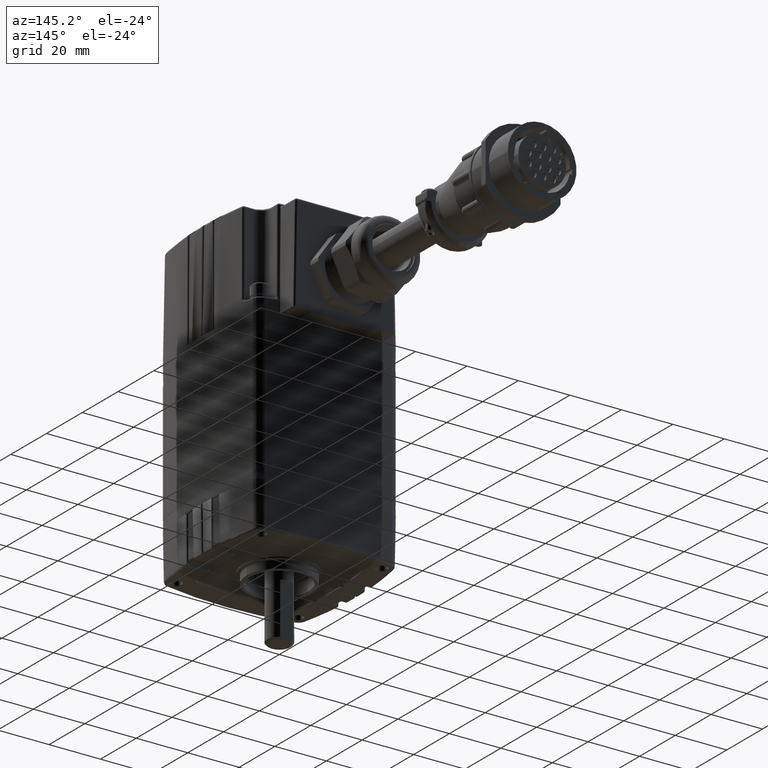
[diagram: clean part render]
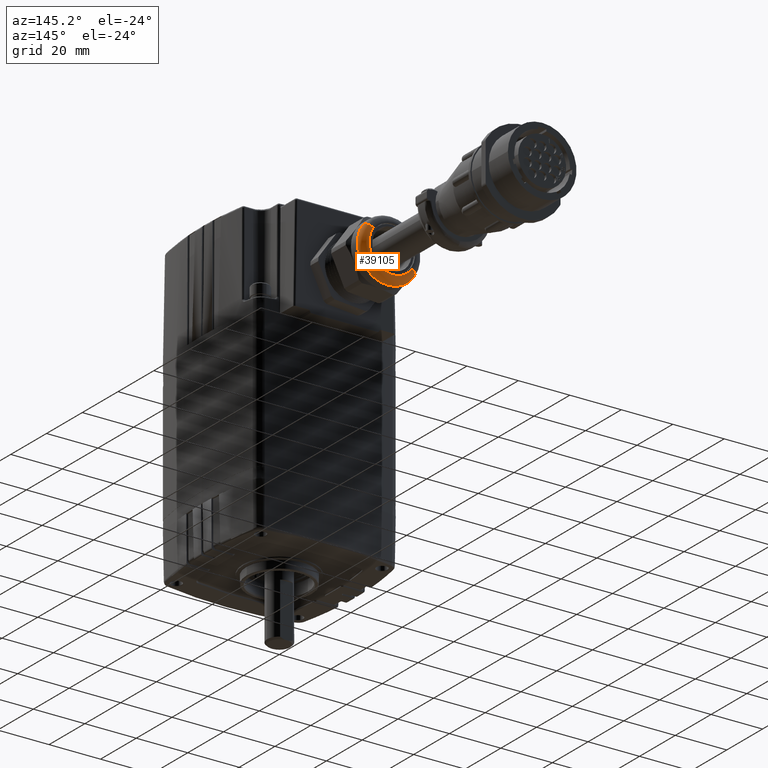
[diagram: same view with one face highlighted and labeled with its STEP entity id]
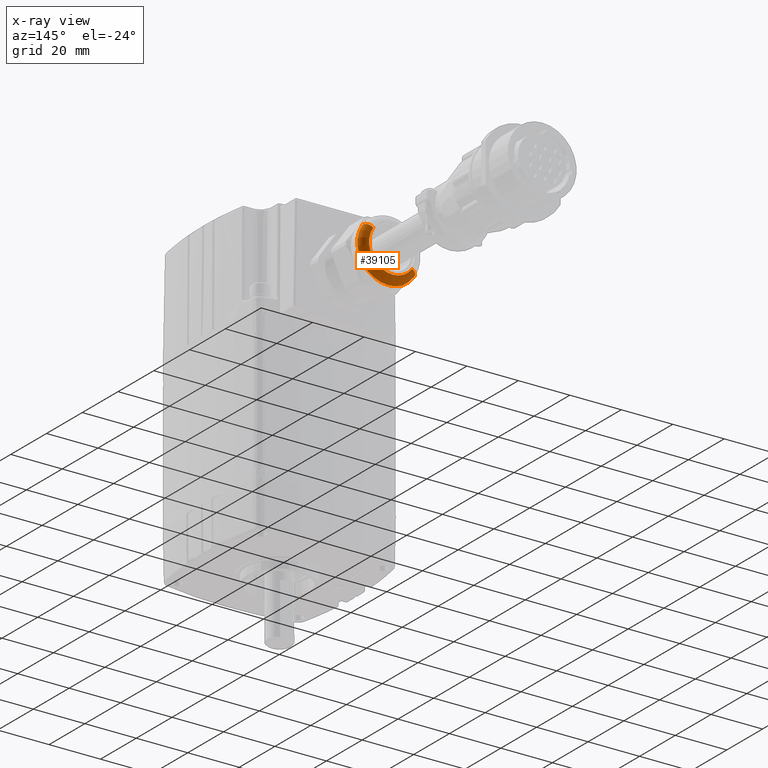
[diagram: x-ray of the same camera — body ghosted, the highlighted face saturated]
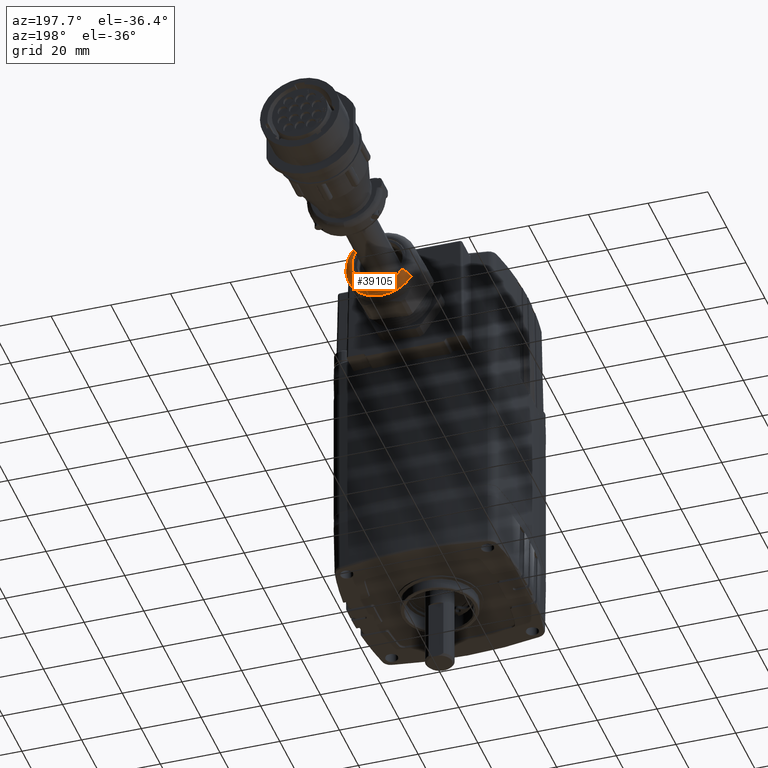
[diagram: same view with one face highlighted and labeled with its STEP entity id]
A machine part, auxiliary view. The second image highlights one B-rep face of the part: STEP entity #39105.
The next image is the same camera in x-ray: the body ghosted, the highlighted face saturated — about 0% of this face is hidden behind the body in this view.
A second angle (auxiliary view) of the same face is appended — the face is thin or edge-on in the first view.
In plain terms, the highlighted toroidal blend (fillet) surface has major radius 9.2354 mm and minor (blend) radius 2.7026 mm.
Its self-contained STEP definition (entity closure, byte-faithful):
#48 = DIRECTION ( 'NONE',  ( 0.0000000000000000000, 0.0000000000000000000, -1.000000000000000000 ) ) ;
#2587 = VERTEX_POINT ( 'NONE', #12989 ) ;
#2932 = DIRECTION ( 'NONE',  ( 0.0000000000000000000, 0.0000000000000000000, -1.000000000000000000 ) ) ;
#4122 = CARTESIAN_POINT ( 'NONE',  ( -1.059999999999999600, 5.104327858846166800E-017, 0.3635999999999999200 ) ) ;
#4992 = ORIENTED_EDGE ( 'NONE', *, *, #12847, .T. ) ;
#7899 = EDGE_CURVE ( 'NONE', #9628, #24178, #21653, .T. ) ;
#8635 = DIRECTION ( 'NONE',  ( -1.000000000000000000, -0.0000000000000000000, -0.0000000000000000000 ) ) ;
#9628 = VERTEX_POINT ( 'NONE', #4122 ) ;
#9680 = ORIENTED_EDGE ( 'NONE', *, *, #28804, .F. ) ;
#9828 = AXIS2_PLACEMENT_3D ( 'NONE', #26937, #8635, #30029 ) ;
#11738 = ORIENTED_EDGE ( 'NONE', *, *, #7899, .F. ) ;
#12295 = DIRECTION ( 'NONE',  ( 0.0000000000000000000, -1.000000000000000000, 0.0000000000000000000 ) ) ;
#12847 = EDGE_CURVE ( 'NONE', #9628, #37941, #31011, .T. ) ;
#12989 = CARTESIAN_POINT ( 'NONE',  ( -0.9535999999999998900, 5.755839955992558400E-017, -0.4699999999999999200 ) ) ;
#13721 = AXIS2_PLACEMENT_3D ( 'NONE', #36634, #30538, #48 ) ;
#14928 = CIRCLE ( 'NONE', #23809, 0.1063999999999999900 ) ;
#16199 = TOROIDAL_SURFACE ( 'NONE', #13721, 0.3635999999999999200, 0.1063999999999999500 ) ;
#17926 = DIRECTION ( 'NONE',  ( 0.0000000000000000000, 1.000000000000000000, -1.224646799147353200E-016 ) ) ;
#19335 = ORIENTED_EDGE ( 'NONE', *, *, #19812, .F. ) ;
#19812 = EDGE_CURVE ( 'NONE', #2587, #37941, #30181, .T. ) ;
#20515 = CARTESIAN_POINT ( 'NONE',  ( -1.059999999999999600, 0.0000000000000000000, -0.3635999999999999200 ) ) ;
#21272 = DIRECTION ( 'NONE',  ( 1.000000000000000000, 0.0000000000000000000, 0.0000000000000000000 ) ) ;
#21653 = CIRCLE ( 'NONE', #9828, 0.3635999999999999200 ) ;
#23809 = AXIS2_PLACEMENT_3D ( 'NONE', #30581, #12295, #33617 ) ;
#24178 = VERTEX_POINT ( 'NONE', #20515 ) ;
#24248 = FACE_OUTER_BOUND ( 'NONE', #26948, .T. ) ;
#24542 = AXIS2_PLACEMENT_3D ( 'NONE', #36172, #17926, #39235 ) ;
#26937 = CARTESIAN_POINT ( 'NONE',  ( -1.059999999999999600, 0.0000000000000000000, 0.0000000000000000000 ) ) ;
#26948 = EDGE_LOOP ( 'NONE', ( #11738, #4992, #19335, #9680 ) ) ;
#28804 = EDGE_CURVE ( 'NONE', #24178, #2587, #14928, .T. ) ;
#30029 = DIRECTION ( 'NONE',  ( 0.0000000000000000000, 0.0000000000000000000, -1.000000000000000000 ) ) ;
#30181 = CIRCLE ( 'NONE', #36067, 0.4699999999999999200 ) ;
#30538 = DIRECTION ( 'NONE',  ( 1.000000000000000000, 0.0000000000000000000, 0.0000000000000000000 ) ) ;
#30581 = CARTESIAN_POINT ( 'NONE',  ( -0.9535999999999998900, 0.0000000000000000000, -0.3635999999999999200 ) ) ;
#31011 = CIRCLE ( 'NONE', #24542, 0.1063999999999999900 ) ;
#32547 = CARTESIAN_POINT ( 'NONE',  ( -0.9535999999999998900, 0.0000000000000000000, 0.4699999999999999200 ) ) ;
#33617 = DIRECTION ( 'NONE',  ( 0.0000000000000000000, 0.0000000000000000000, -1.000000000000000000 ) ) ;
#36067 = AXIS2_PLACEMENT_3D ( 'NONE', #39551, #21272, #2932 ) ;
#36172 = CARTESIAN_POINT ( 'NONE',  ( -0.9535999999999998900, 4.452815761699774700E-017, 0.3635999999999999200 ) ) ;
#36634 = CARTESIAN_POINT ( 'NONE',  ( -0.9535999999999998900, 0.0000000000000000000, 0.0000000000000000000 ) ) ;
#37941 = VERTEX_POINT ( 'NONE', #32547 ) ;
#39105 = ADVANCED_FACE ( 'NONE', ( #24248 ), #16199, .T. ) ;
#39235 = DIRECTION ( 'NONE',  ( 0.0000000000000000000, 1.224646799147353000E-016, 1.000000000000000000 ) ) ;
#39551 = CARTESIAN_POINT ( 'NONE',  ( -0.9535999999999998900, 0.0000000000000000000, 0.0000000000000000000 ) ) ;